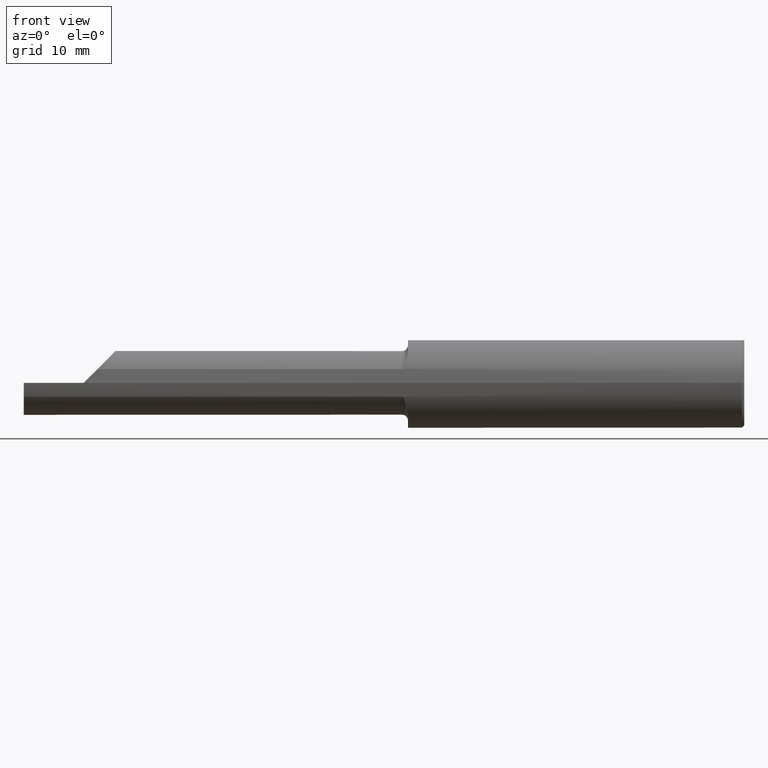
[diagram: clean part render]
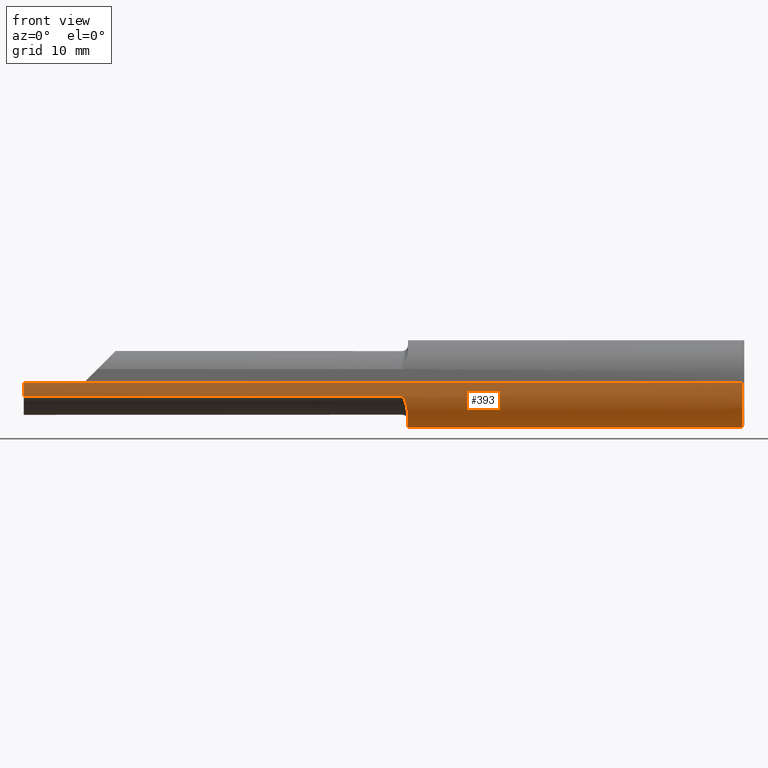
[diagram: same view with one face highlighted and labeled with its STEP entity id]
A machine part, front view. The second image highlights one B-rep face of the part: STEP entity #393.
In plain terms, the highlighted cylindrical surface (partial cylindrical patch) has radius 4.7587 mm, axis along (1, 0, -0).
Its self-contained STEP definition (entity closure, byte-faithful):
#6 = AXIS2_PLACEMENT_3D ( 'NONE', #842, #383, #230 ) ;
#11 = DIRECTION ( 'NONE',  ( 0.000000000000000000, 1.000000000000000000, 0.000000000000000000 ) ) ;
#13 = DIRECTION ( 'NONE',  ( -1.000000000000000000, -1.224646799147313518E-16, 0.000000000000000000 ) ) ;
#27 = EDGE_CURVE ( 'NONE', #843, #851, #860, .T. ) ;
#39 = ORIENTED_EDGE ( 'NONE', *, *, #163, .T. ) ;
#50 = CARTESIAN_POINT ( 'NONE',  ( -1.414331470962521875, -0.1730809661842618030, -0.07185561948439779523 ) ) ;
#54 = CARTESIAN_POINT ( 'NONE',  ( -1.400000000000000133, -0.1160303770351317904, -0.1470951192429073018 ) ) ;
#62 = CIRCLE ( 'NONE', #91, 0.1873499999999999888 ) ;
#80 = DIRECTION ( 'NONE',  ( 1.000000000000000000, 1.224646799147352961E-16, -0.000000000000000000 ) ) ;
#91 = AXIS2_PLACEMENT_3D ( 'NONE', #805, #13, #329 ) ;
#108 = CIRCLE ( 'NONE', #783, 0.1873499999999999888 ) ;
#119 = CARTESIAN_POINT ( 'NONE',  ( -1.418162645443745928, -0.1762760481395241330, -0.06349063590883695374 ) ) ;
#122 = CARTESIAN_POINT ( 'NONE',  ( -1.424999999999999600, -0.1783697086546693900, -0.05730854678360270543 ) ) ;
#131 = CARTESIAN_POINT ( 'NONE',  ( -3.000000000000000444, -0.1873500000000000443, 2.294375778202566330E-17 ) ) ;
#136 = DIRECTION ( 'NONE',  ( 1.000000000000000000, 1.224646799147352961E-16, -0.000000000000000000 ) ) ;
#157 = ORIENTED_EDGE ( 'NONE', *, *, #423, .T. ) ;
#163 = EDGE_CURVE ( 'NONE', #231, #843, #108, .T. ) ;
#177 = CARTESIAN_POINT ( 'NONE',  ( -1.417141984682263267, -0.1755174329696180535, -0.06556455082929055211 ) ) ;
#180 = CARTESIAN_POINT ( 'NONE',  ( -1.406840882823497285, -0.1605979928433038106, -0.09695168669191682465 ) ) ;
#189 = CARTESIAN_POINT ( 'NONE',  ( -1.424999999999999600, -0.1783697086546693900, -0.05730854678360270543 ) ) ;
#212 = CARTESIAN_POINT ( 'NONE',  ( -3.000000000000000444, 0.1873499999999999055, 0.000000000000000000 ) ) ;
#221 = ORIENTED_EDGE ( 'NONE', *, *, #786, .T. ) ;
#224 = VECTOR ( 'NONE', #136, 39.37007874015748143 ) ;
#230 = DIRECTION ( 'NONE',  ( 0.000000000000000000, -1.000000000000000000, 0.000000000000000000 ) ) ;
#231 = VERTEX_POINT ( 'NONE', #761 ) ;
#241 = ORIENTED_EDGE ( 'NONE', *, *, #399, .T. ) ;
#246 = VECTOR ( 'NONE', #870, 39.37007874015748143 ) ;
#258 = CARTESIAN_POINT ( 'NONE',  ( -3.000000000000000444, -6.123233995736767268E-17, 0.000000000000000000 ) ) ;
#263 = DIRECTION ( 'NONE',  ( 1.000000000000000000, 9.422009876951564852E-18, 0.000000000000000000 ) ) ;
#268 = CARTESIAN_POINT ( 'NONE',  ( -3.000000000000000444, -6.123233995736767268E-17, 0.000000000000000000 ) ) ;
#306 = CARTESIAN_POINT ( 'NONE',  ( -1.422632702519553982, -0.1781504652642081354, -0.05799271583144598174 ) ) ;
#315 = B_SPLINE_CURVE_WITH_KNOTS ( 'NONE', 3,
 ( #122, #722, #306, #787, #655, #119, #177, #50, #591, #856, #180, #381, #659, #54 ),
 .UNSPECIFIED., .F., .F.,
 ( 4, 2, 2, 2, 2, 2, 4 ),
 ( 1.965724206508649174E-07, 9.384097494423985142E-05, 0.0001874853774678288424, 0.0003747741825150062824, 0.0007493517926093602949, 0.001498507012798063441, 0.002996817453175475154 ),
 .UNSPECIFIED. ) ;
#328 = CARTESIAN_POINT ( 'NONE',  ( -3.000000000000000444, -0.1783697086546697508, -0.05730854678360152582 ) ) ;
#329 = DIRECTION ( 'NONE',  ( -1.253099476677462608E-16, 1.000000000000000000, 0.000000000000000000 ) ) ;
#340 = EDGE_CURVE ( 'NONE', #832, #343, #557, .T. ) ;
#343 = VERTEX_POINT ( 'NONE', #502 ) ;
#375 = EDGE_LOOP ( 'NONE', ( #785, #663, #39, #828, #221, #727, #157, #241 ) ) ;
#381 = CARTESIAN_POINT ( 'NONE',  ( -1.401810233260115668, -0.1445504080075231956, -0.1207082908324052517 ) ) ;
#383 = DIRECTION ( 'NONE',  ( 1.000000000000000000, 9.422009876951564852E-18, 0.000000000000000000 ) ) ;
#391 = CARTESIAN_POINT ( 'NONE',  ( -3.000000000000000444, -0.1873500000000000443, 0.000000000000000000 ) ) ;
#393 = ADVANCED_FACE ( 'NONE', ( #554 ), #404, .T. ) ;
#399 = EDGE_CURVE ( 'NONE', #723, #685, #62, .T. ) ;
#404 = CYLINDRICAL_SURFACE ( 'NONE', #699, 0.1873499999999999888 ) ;
#423 = EDGE_CURVE ( 'NONE', #343, #723, #611, .T. ) ;
#427 = VECTOR ( 'NONE', #80, 39.37007874015748143 ) ;
#439 = EDGE_CURVE ( 'NONE', #648, #685, #733, .T. ) ;
#444 = VECTOR ( 'NONE', #263, 39.37007874015748143 ) ;
#461 = LINE ( 'NONE', #391, #246 ) ;
#502 = CARTESIAN_POINT ( 'NONE',  ( -1.400000000000000133, 0.1873500000000000998, 0.000000000000000000 ) ) ;
#520 = CARTESIAN_POINT ( 'NONE',  ( -2.153037187078897574, -0.1783697086546693344, -0.05730854678360262910 ) ) ;
#546 = DIRECTION ( 'NONE',  ( 1.000000000000000000, 1.224646799147352961E-16, -0.000000000000000000 ) ) ;
#554 = FACE_OUTER_BOUND ( 'NONE', #375, .T. ) ;
#557 = CIRCLE ( 'NONE', #6, 0.1873499999999999888 ) ;
#579 = CARTESIAN_POINT ( 'NONE',  ( -2.750000000000000888, -0.1873500000000000443, 0.000000000000000000 ) ) ;
#591 = CARTESIAN_POINT ( 'NONE',  ( -1.412851115778101629, -0.1712424833498250865, -0.07614241156970234792 ) ) ;
#611 = LINE ( 'NONE', #212, #224 ) ;
#621 = DIRECTION ( 'NONE',  ( 0.000000000000000000, 1.000000000000000000, 0.000000000000000000 ) ) ;
#648 = VERTEX_POINT ( 'NONE', #579 ) ;
#655 = CARTESIAN_POINT ( 'NONE',  ( -1.420126530293609468, -0.1772957297413636502, -0.06055838166122323729 ) ) ;
#659 = CARTESIAN_POINT ( 'NONE',  ( -1.399999999999999245, -0.1312984737625748355, -0.1350514632126310066 ) ) ;
#663 = ORIENTED_EDGE ( 'NONE', *, *, #803, .F. ) ;
#685 = VERTEX_POINT ( 'NONE', #849 ) ;
#699 = AXIS2_PLACEMENT_3D ( 'NONE', #258, #753, #621 ) ;
#722 = CARTESIAN_POINT ( 'NONE',  ( -1.423749915749442652, -0.1783697086546687793, -0.05730854678360418342 ) ) ;
#723 = VERTEX_POINT ( 'NONE', #853 ) ;
#727 = ORIENTED_EDGE ( 'NONE', *, *, #340, .T. ) ;
#732 = CARTESIAN_POINT ( 'NONE',  ( -1.400000000000000133, -0.1160303770351317904, -0.1470951192429073018 ) ) ;
#733 = LINE ( 'NONE', #131, #427 ) ;
#753 = DIRECTION ( 'NONE',  ( 1.000000000000000000, 1.224646799147352961E-16, -0.000000000000000000 ) ) ;
#761 = CARTESIAN_POINT ( 'NONE',  ( -3.000000000000000444, -0.1873500000000000443, 0.000000000000000000 ) ) ;
#783 = AXIS2_PLACEMENT_3D ( 'NONE', #268, #546, #11 ) ;
#785 = ORIENTED_EDGE ( 'NONE', *, *, #439, .F. ) ;
#786 = EDGE_CURVE ( 'NONE', #851, #832, #315, .T. ) ;
#787 = CARTESIAN_POINT ( 'NONE',  ( -1.420855552425396295, -0.1776175334603393718, -0.05960499283471026172 ) ) ;
#803 = EDGE_CURVE ( 'NONE', #231, #648, #461, .T. ) ;
#805 = CARTESIAN_POINT ( 'NONE',  ( -0.009999999999999620304, 3.049370529876909883E-16, 0.000000000000000000 ) ) ;
#828 = ORIENTED_EDGE ( 'NONE', *, *, #27, .T. ) ;
#832 = VERTEX_POINT ( 'NONE', #732 ) ;
#842 = CARTESIAN_POINT ( 'NONE',  ( -1.400000000000000133, 1.347111479062088257E-16, 0.000000000000000000 ) ) ;
#843 = VERTEX_POINT ( 'NONE', #328 ) ;
#849 = CARTESIAN_POINT ( 'NONE',  ( -0.009999999999999596018, -0.1873499999999996835, 2.294375778202566330E-17 ) ) ;
#851 = VERTEX_POINT ( 'NONE', #189 ) ;
#853 = CARTESIAN_POINT ( 'NONE',  ( -0.009999999999999642855, 0.1873500000000002941, 0.000000000000000000 ) ) ;
#856 = CARTESIAN_POINT ( 'NONE',  ( -1.408867519642199140, -0.1652587220708474358, -0.08874743406640481225 ) ) ;
#860 = LINE ( 'NONE', #520, #444 ) ;
#870 = DIRECTION ( 'NONE',  ( 1.000000000000000000, 1.224646799147352961E-16, -0.000000000000000000 ) ) ;